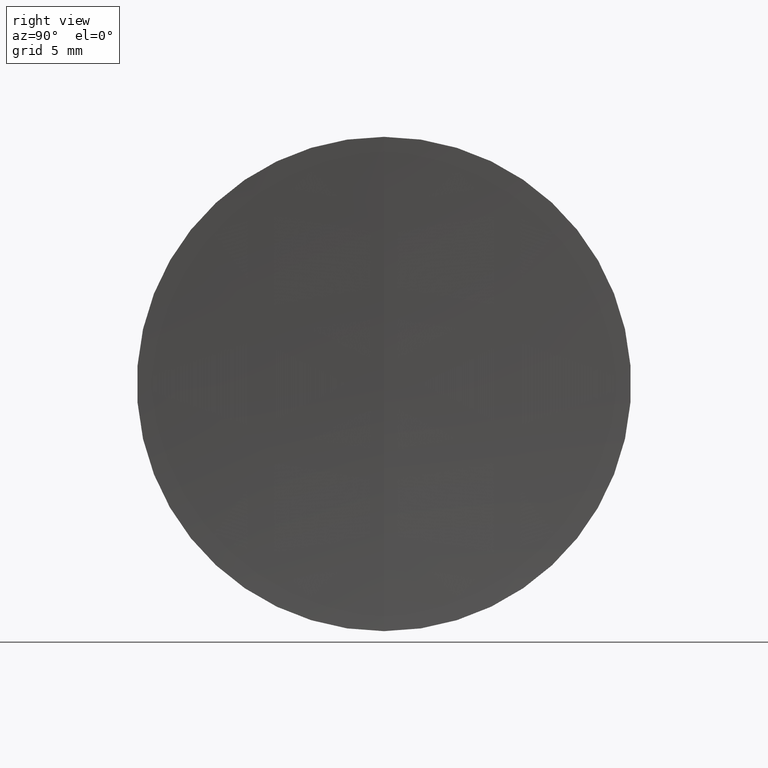
[diagram: clean part render]
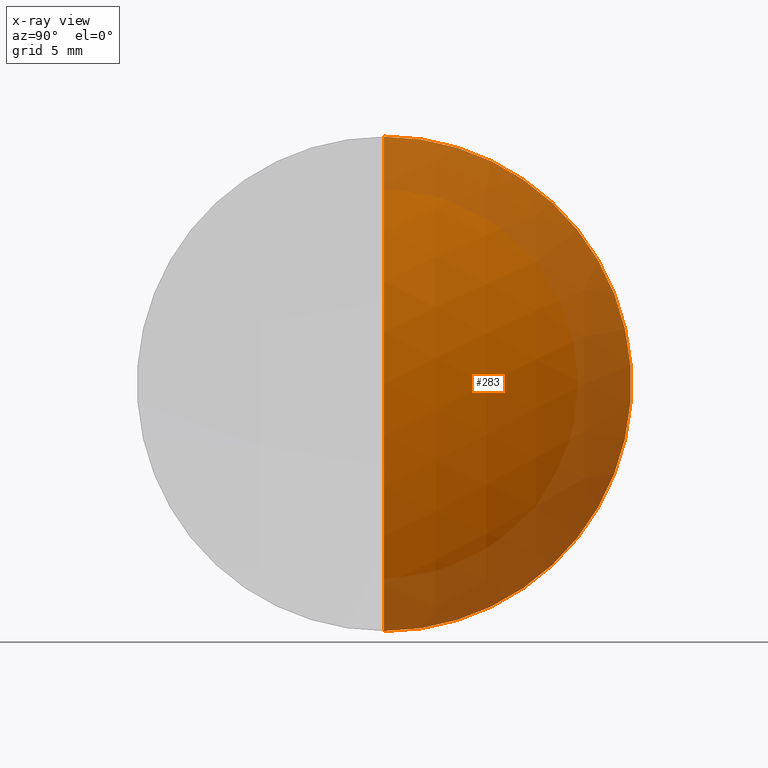
[diagram: x-ray — body ghosted, one internal face saturated and labeled with its STEP entity id]
A machine part, right view, then the same camera in x-ray: the body is ghosted and one INTERNAL B-rep face — a face not visible from any outside direction — is saturated and labeled: STEP entity #283.
In plain terms, the highlighted spherical surface has radius 25.88 mm.
Its self-contained STEP definition (entity closure, byte-faithful):
#2 = CARTESIAN_POINT ( 'NONE',  ( 15.07937379721097100, 0.0000000000000000000, -4.336808689942052200E-016 ) ) ;
#14 = DIRECTION ( 'NONE',  ( 0.0000000000000000000, 0.0000000000000000000, 1.000000000000000000 ) ) ;
#20 = VERTEX_POINT ( 'NONE', #103 ) ;
#26 = EDGE_LOOP ( 'NONE', ( #261, #270, #344 ) ) ;
#27 = EDGE_CURVE ( 'NONE', #20, #182, #229, .T. ) ;
#34 = CARTESIAN_POINT ( 'NONE',  ( 15.07937379721097100, 0.0000000000000000000, -4.336808689942052200E-016 ) ) ;
#35 = VERTEX_POINT ( 'NONE', #197 ) ;
#72 = EDGE_CURVE ( 'NONE', #35, #182, #139, .T. ) ;
#79 = AXIS2_PLACEMENT_3D ( 'NONE', #34, #196, #325 ) ;
#86 = CIRCLE ( 'NONE', #343, 25.87999999999999500 ) ;
#103 = CARTESIAN_POINT ( 'NONE',  ( 37.62897246326265600, 0.0000000000000000000, 12.69999999999999900 ) ) ;
#115 = FACE_OUTER_BOUND ( 'NONE', #26, .T. ) ;
#139 = CIRCLE ( 'NONE', #292, 25.87999999999999500 ) ;
#166 = SPHERICAL_SURFACE ( 'NONE', #79, 25.87999999999999500 ) ;
#167 = AXIS2_PLACEMENT_3D ( 'NONE', #239, #280, #14 ) ;
#171 = DIRECTION ( 'NONE',  ( -0.0000000000000000000, 1.000000000000000000, 1.224646799147353200E-016 ) ) ;
#182 = VERTEX_POINT ( 'NONE', #279 ) ;
#196 = DIRECTION ( 'NONE',  ( 0.0000000000000000000, 1.000000000000000000, 0.0000000000000000000 ) ) ;
#197 = CARTESIAN_POINT ( 'NONE',  ( 40.95937379721097200, 0.0000000000000000000, 1.151012089102469500E-015 ) ) ;
#202 = DIRECTION ( 'NONE',  ( 0.0000000000000000000, -1.000000000000000000, 0.0000000000000000000 ) ) ;
#229 = CIRCLE ( 'NONE', #167, 12.69999999999999900 ) ;
#239 = CARTESIAN_POINT ( 'NONE',  ( 37.62897246326265600, 0.0000000000000000000, 0.0000000000000000000 ) ) ;
#257 = DIRECTION ( 'NONE',  ( 0.0000000000000000000, 0.0000000000000000000, -1.000000000000000000 ) ) ;
#261 = ORIENTED_EDGE ( 'NONE', *, *, #342, .F. ) ;
#270 = ORIENTED_EDGE ( 'NONE', *, *, #72, .T. ) ;
#271 = DIRECTION ( 'NONE',  ( 0.0000000000000000000, -1.224646799147353200E-016, 1.000000000000000000 ) ) ;
#279 = CARTESIAN_POINT ( 'NONE',  ( 37.62897246326265600, 1.555301434917138400E-015, -12.69999999999999900 ) ) ;
#280 = DIRECTION ( 'NONE',  ( -1.000000000000000000, -0.0000000000000000000, -0.0000000000000000000 ) ) ;
#283 = ADVANCED_FACE ( 'NONE', ( #115 ), #166, .T. ) ;
#290 = CARTESIAN_POINT ( 'NONE',  ( 15.07937379721097100, 0.0000000000000000000, -4.336808689942052200E-016 ) ) ;
#292 = AXIS2_PLACEMENT_3D ( 'NONE', #290, #171, #271 ) ;
#325 = DIRECTION ( 'NONE',  ( 0.0000000000000000000, 0.0000000000000000000, 1.000000000000000000 ) ) ;
#342 = EDGE_CURVE ( 'NONE', #35, #20, #86, .T. ) ;
#343 = AXIS2_PLACEMENT_3D ( 'NONE', #2, #202, #257 ) ;
#344 = ORIENTED_EDGE ( 'NONE', *, *, #27, .F. ) ;